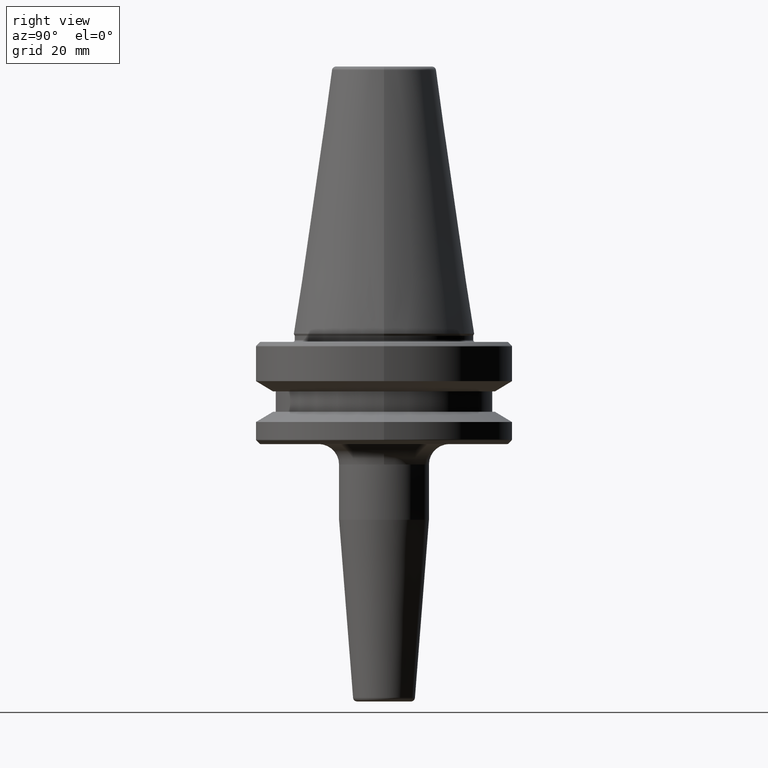
[diagram: clean part render]
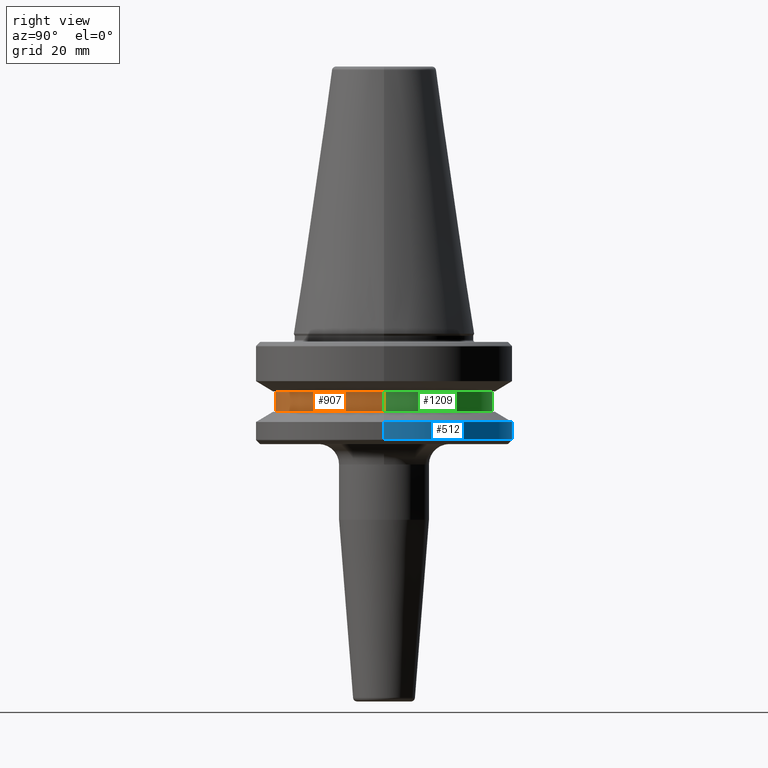
[diagram: same view with three faces highlighted in distinct colors, each labeled with its STEP entity id]
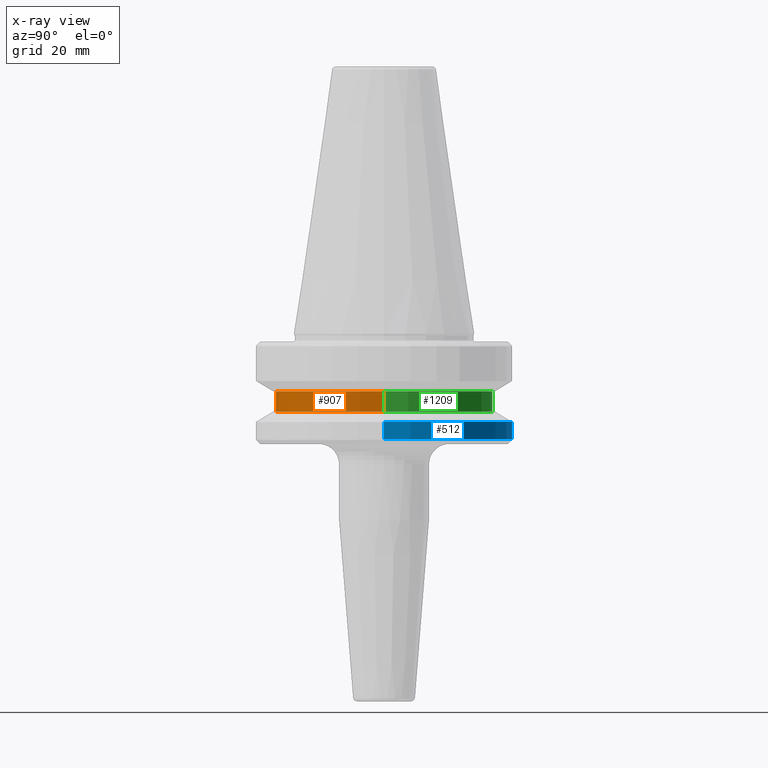
[diagram: x-ray of the same camera — body ghosted, the three highlighted faces saturated]
A machine part, right view with three faces highlighted in distinct colors.
The next image is the same camera in x-ray (body ghosted, the three faces saturated) — at least one of them is partly hidden behind the body in this view.
Their STEP definitions:

[orange] entity #907 — the highlighted cylindrical surface (partial cylindrical patch) has radius 26.5 mm, axis along (-0, -0, 1).
#85 = CARTESIAN_POINT ( 'NONE',  ( 26.50000000000000000, 0.0000000000000000000, -19.10000000000000500 ) ) ;
#130 = CARTESIAN_POINT ( 'NONE',  ( 0.0000000000000000000, 0.0000000000000000000, 69.75694866325665100 ) ) ;
#178 = AXIS2_PLACEMENT_3D ( 'NONE', #130, #1010, #817 ) ;
#230 = VERTEX_POINT ( 'NONE', #1008 ) ;
#236 = AXIS2_PLACEMENT_3D ( 'NONE', #320, #1005, #419 ) ;
#238 = VECTOR ( 'NONE', #652, 1000.000000000000000 ) ;
#247 = AXIS2_PLACEMENT_3D ( 'NONE', #826, #938, #580 ) ;
#309 = CYLINDRICAL_SURFACE ( 'NONE', #178, 26.50000000000000000 ) ;
#320 = CARTESIAN_POINT ( 'NONE',  ( 0.0000000000000000000, 0.0000000000000000000, -14.10000000000000100 ) ) ;
#326 = CARTESIAN_POINT ( 'NONE',  ( 26.50000000000000000, 0.0000000000000000000, 69.75694866325665100 ) ) ;
#415 = ORIENTED_EDGE ( 'NONE', *, *, #1044, .F. ) ;
#419 = DIRECTION ( 'NONE',  ( 1.000000000000000000, 0.0000000000000000000, 0.0000000000000000000 ) ) ;
#488 = LINE ( 'NONE', #1241, #238 ) ;
#506 = EDGE_CURVE ( 'NONE', #847, #609, #552, .T. ) ;
#519 = VERTEX_POINT ( 'NONE', #687 ) ;
#544 = ORIENTED_EDGE ( 'NONE', *, *, #772, .F. ) ;
#552 = CIRCLE ( 'NONE', #247, 26.50000000000000000 ) ;
#580 = DIRECTION ( 'NONE',  ( 1.000000000000000000, 0.0000000000000000000, 0.0000000000000000000 ) ) ;
#609 = VERTEX_POINT ( 'NONE', #85 ) ;
#652 = DIRECTION ( 'NONE',  ( -0.0000000000000000000, -0.0000000000000000000, 1.000000000000000000 ) ) ;
#662 = LINE ( 'NONE', #326, #1157 ) ;
#687 = CARTESIAN_POINT ( 'NONE',  ( -26.50000000000000000, 3.245314017740485800E-015, -14.10000000000000100 ) ) ;
#772 = EDGE_CURVE ( 'NONE', #519, #230, #1003, .T. ) ;
#817 = DIRECTION ( 'NONE',  ( 1.000000000000000000, 0.0000000000000000000, 0.0000000000000000000 ) ) ;
#826 = CARTESIAN_POINT ( 'NONE',  ( 0.0000000000000000000, 0.0000000000000000000, -19.10000000000000500 ) ) ;
#833 = FACE_OUTER_BOUND ( 'NONE', #842, .T. ) ;
#842 = EDGE_LOOP ( 'NONE', ( #415, #1084, #976, #544 ) ) ;
#847 = VERTEX_POINT ( 'NONE', #1194 ) ;
#907 = ADVANCED_FACE ( 'NONE', ( #833 ), #309, .T. ) ;
#938 = DIRECTION ( 'NONE',  ( -0.0000000000000000000, -0.0000000000000000000, 1.000000000000000000 ) ) ;
#976 = ORIENTED_EDGE ( 'NONE', *, *, #1141, .T. ) ;
#1003 = CIRCLE ( 'NONE', #236, 26.50000000000000000 ) ;
#1005 = DIRECTION ( 'NONE',  ( -0.0000000000000000000, -0.0000000000000000000, 1.000000000000000000 ) ) ;
#1008 = CARTESIAN_POINT ( 'NONE',  ( 26.50000000000000000, 0.0000000000000000000, -14.10000000000000100 ) ) ;
#1009 = DIRECTION ( 'NONE',  ( -0.0000000000000000000, -0.0000000000000000000, 1.000000000000000000 ) ) ;
#1010 = DIRECTION ( 'NONE',  ( -0.0000000000000000000, -0.0000000000000000000, 1.000000000000000000 ) ) ;
#1044 = EDGE_CURVE ( 'NONE', #847, #519, #488, .T. ) ;
#1084 = ORIENTED_EDGE ( 'NONE', *, *, #506, .T. ) ;
#1141 = EDGE_CURVE ( 'NONE', #609, #230, #662, .T. ) ;
#1157 = VECTOR ( 'NONE', #1009, 1000.000000000000000 ) ;
#1194 = CARTESIAN_POINT ( 'NONE',  ( -26.50000000000000000, 3.245314017740485800E-015, -19.10000000000000500 ) ) ;
#1241 = CARTESIAN_POINT ( 'NONE',  ( -26.50000000000000000, 3.245314017740485800E-015, 69.75694866325665100 ) ) ;

[blue] entity #512 — the highlighted cylindrical surface (partial cylindrical patch) has radius 31.5 mm, axis along (-0, -0, 1).
#26 = LINE ( 'NONE', #421, #788 ) ;
#60 = ORIENTED_EDGE ( 'NONE', *, *, #792, .T. ) ;
#62 = AXIS2_PLACEMENT_3D ( 'NONE', #1082, #491, #1180 ) ;
#79 = AXIS2_PLACEMENT_3D ( 'NONE', #431, #139, #624 ) ;
#101 = AXIS2_PLACEMENT_3D ( 'NONE', #1016, #427, #1117 ) ;
#139 = DIRECTION ( 'NONE',  ( -0.0000000000000000000, -0.0000000000000000000, 1.000000000000000000 ) ) ;
#165 = EDGE_CURVE ( 'NONE', #829, #445, #26, .T. ) ;
#263 = EDGE_LOOP ( 'NONE', ( #60, #1281, #1239, #1127 ) ) ;
#405 = CIRCLE ( 'NONE', #62, 31.50000000000000000 ) ;
#421 = CARTESIAN_POINT ( 'NONE',  ( -31.50000000000000000, 3.857637417314162700E-015, 69.75694866325665100 ) ) ;
#427 = DIRECTION ( 'NONE',  ( -0.0000000000000000000, -0.0000000000000000000, 1.000000000000000000 ) ) ;
#431 = CARTESIAN_POINT ( 'NONE',  ( 0.0000000000000000000, 0.0000000000000000000, 69.75694866325665100 ) ) ;
#445 = VERTEX_POINT ( 'NONE', #447 ) ;
#447 = CARTESIAN_POINT ( 'NONE',  ( -31.50000000000000000, 3.857637417314162700E-015, -21.60014200631675500 ) ) ;
#467 = EDGE_CURVE ( 'NONE', #606, #445, #1115, .T. ) ;
#491 = DIRECTION ( 'NONE',  ( -0.0000000000000000000, -0.0000000000000000000, 1.000000000000000000 ) ) ;
#512 = ADVANCED_FACE ( 'NONE', ( #853 ), #1053, .T. ) ;
#547 = EDGE_CURVE ( 'NONE', #716, #606, #786, .T. ) ;
#606 = VERTEX_POINT ( 'NONE', #1076 ) ;
#614 = DIRECTION ( 'NONE',  ( -0.0000000000000000000, -0.0000000000000000000, 1.000000000000000000 ) ) ;
#624 = DIRECTION ( 'NONE',  ( 1.000000000000000000, 0.0000000000000000000, 0.0000000000000000000 ) ) ;
#716 = VERTEX_POINT ( 'NONE', #798 ) ;
#786 = LINE ( 'NONE', #1275, #1277 ) ;
#788 = VECTOR ( 'NONE', #614, 1000.000000000000000 ) ;
#792 = EDGE_CURVE ( 'NONE', #716, #829, #405, .T. ) ;
#798 = CARTESIAN_POINT ( 'NONE',  ( 31.50000000000000000, 0.0000000000000000000, -25.83431457505076900 ) ) ;
#829 = VERTEX_POINT ( 'NONE', #886 ) ;
#853 = FACE_OUTER_BOUND ( 'NONE', #263, .T. ) ;
#886 = CARTESIAN_POINT ( 'NONE',  ( -31.50000000000000000, 3.857637417314162700E-015, -25.83431457505076900 ) ) ;
#1016 = CARTESIAN_POINT ( 'NONE',  ( 0.0000000000000000000, 0.0000000000000000000, -21.60014200631675500 ) ) ;
#1053 = CYLINDRICAL_SURFACE ( 'NONE', #79, 31.50000000000000000 ) ;
#1076 = CARTESIAN_POINT ( 'NONE',  ( 31.50000000000000000, 0.0000000000000000000, -21.60014200631675500 ) ) ;
#1082 = CARTESIAN_POINT ( 'NONE',  ( 0.0000000000000000000, 0.0000000000000000000, -25.83431457505076900 ) ) ;
#1115 = CIRCLE ( 'NONE', #101, 31.50000000000000000 ) ;
#1117 = DIRECTION ( 'NONE',  ( 1.000000000000000000, 0.0000000000000000000, 0.0000000000000000000 ) ) ;
#1127 = ORIENTED_EDGE ( 'NONE', *, *, #547, .F. ) ;
#1180 = DIRECTION ( 'NONE',  ( 1.000000000000000000, 0.0000000000000000000, 0.0000000000000000000 ) ) ;
#1239 = ORIENTED_EDGE ( 'NONE', *, *, #467, .F. ) ;
#1271 = DIRECTION ( 'NONE',  ( -0.0000000000000000000, -0.0000000000000000000, 1.000000000000000000 ) ) ;
#1275 = CARTESIAN_POINT ( 'NONE',  ( 31.50000000000000000, 0.0000000000000000000, 69.75694866325665100 ) ) ;
#1277 = VECTOR ( 'NONE', #1271, 1000.000000000000000 ) ;
#1281 = ORIENTED_EDGE ( 'NONE', *, *, #165, .T. ) ;

[green] entity #1209 — the highlighted cylindrical surface (partial cylindrical patch) has radius 26.5 mm, axis along (-0, -0, 1).
#65 = CIRCLE ( 'NONE', #282, 26.50000000000000000 ) ;
#85 = CARTESIAN_POINT ( 'NONE',  ( 26.50000000000000000, 0.0000000000000000000, -19.10000000000000500 ) ) ;
#96 = ORIENTED_EDGE ( 'NONE', *, *, #1253, .T. ) ;
#155 = DIRECTION ( 'NONE',  ( -0.0000000000000000000, -0.0000000000000000000, 1.000000000000000000 ) ) ;
#193 = ORIENTED_EDGE ( 'NONE', *, *, #1044, .T. ) ;
#230 = VERTEX_POINT ( 'NONE', #1008 ) ;
#238 = VECTOR ( 'NONE', #652, 1000.000000000000000 ) ;
#241 = DIRECTION ( 'NONE',  ( -0.0000000000000000000, -0.0000000000000000000, 1.000000000000000000 ) ) ;
#265 = AXIS2_PLACEMENT_3D ( 'NONE', #742, #155, #837 ) ;
#282 = AXIS2_PLACEMENT_3D ( 'NONE', #527, #1221, #627 ) ;
#326 = CARTESIAN_POINT ( 'NONE',  ( 26.50000000000000000, 0.0000000000000000000, 69.75694866325665100 ) ) ;
#401 = FACE_OUTER_BOUND ( 'NONE', #920, .T. ) ;
#488 = LINE ( 'NONE', #1241, #238 ) ;
#519 = VERTEX_POINT ( 'NONE', #687 ) ;
#527 = CARTESIAN_POINT ( 'NONE',  ( 0.0000000000000000000, 0.0000000000000000000, -14.10000000000000100 ) ) ;
#578 = CIRCLE ( 'NONE', #265, 26.50000000000000000 ) ;
#609 = VERTEX_POINT ( 'NONE', #85 ) ;
#612 = ORIENTED_EDGE ( 'NONE', *, *, #1197, .F. ) ;
#627 = DIRECTION ( 'NONE',  ( 1.000000000000000000, 0.0000000000000000000, 0.0000000000000000000 ) ) ;
#652 = DIRECTION ( 'NONE',  ( -0.0000000000000000000, -0.0000000000000000000, 1.000000000000000000 ) ) ;
#653 = CYLINDRICAL_SURFACE ( 'NONE', #699, 26.50000000000000000 ) ;
#662 = LINE ( 'NONE', #326, #1157 ) ;
#687 = CARTESIAN_POINT ( 'NONE',  ( -26.50000000000000000, 3.245314017740485800E-015, -14.10000000000000100 ) ) ;
#699 = AXIS2_PLACEMENT_3D ( 'NONE', #1022, #241, #1123 ) ;
#742 = CARTESIAN_POINT ( 'NONE',  ( 0.0000000000000000000, 0.0000000000000000000, -19.10000000000000500 ) ) ;
#810 = ORIENTED_EDGE ( 'NONE', *, *, #1141, .F. ) ;
#837 = DIRECTION ( 'NONE',  ( 1.000000000000000000, 0.0000000000000000000, 0.0000000000000000000 ) ) ;
#847 = VERTEX_POINT ( 'NONE', #1194 ) ;
#920 = EDGE_LOOP ( 'NONE', ( #96, #193, #612, #810 ) ) ;
#1008 = CARTESIAN_POINT ( 'NONE',  ( 26.50000000000000000, 0.0000000000000000000, -14.10000000000000100 ) ) ;
#1009 = DIRECTION ( 'NONE',  ( -0.0000000000000000000, -0.0000000000000000000, 1.000000000000000000 ) ) ;
#1022 = CARTESIAN_POINT ( 'NONE',  ( 0.0000000000000000000, 0.0000000000000000000, 69.75694866325665100 ) ) ;
#1044 = EDGE_CURVE ( 'NONE', #847, #519, #488, .T. ) ;
#1123 = DIRECTION ( 'NONE',  ( 1.000000000000000000, 0.0000000000000000000, 0.0000000000000000000 ) ) ;
#1141 = EDGE_CURVE ( 'NONE', #609, #230, #662, .T. ) ;
#1157 = VECTOR ( 'NONE', #1009, 1000.000000000000000 ) ;
#1194 = CARTESIAN_POINT ( 'NONE',  ( -26.50000000000000000, 3.245314017740485800E-015, -19.10000000000000500 ) ) ;
#1197 = EDGE_CURVE ( 'NONE', #230, #519, #65, .T. ) ;
#1209 = ADVANCED_FACE ( 'NONE', ( #401 ), #653, .T. ) ;
#1221 = DIRECTION ( 'NONE',  ( -0.0000000000000000000, -0.0000000000000000000, 1.000000000000000000 ) ) ;
#1241 = CARTESIAN_POINT ( 'NONE',  ( -26.50000000000000000, 3.245314017740485800E-015, 69.75694866325665100 ) ) ;
#1253 = EDGE_CURVE ( 'NONE', #609, #847, #578, .T. ) ;